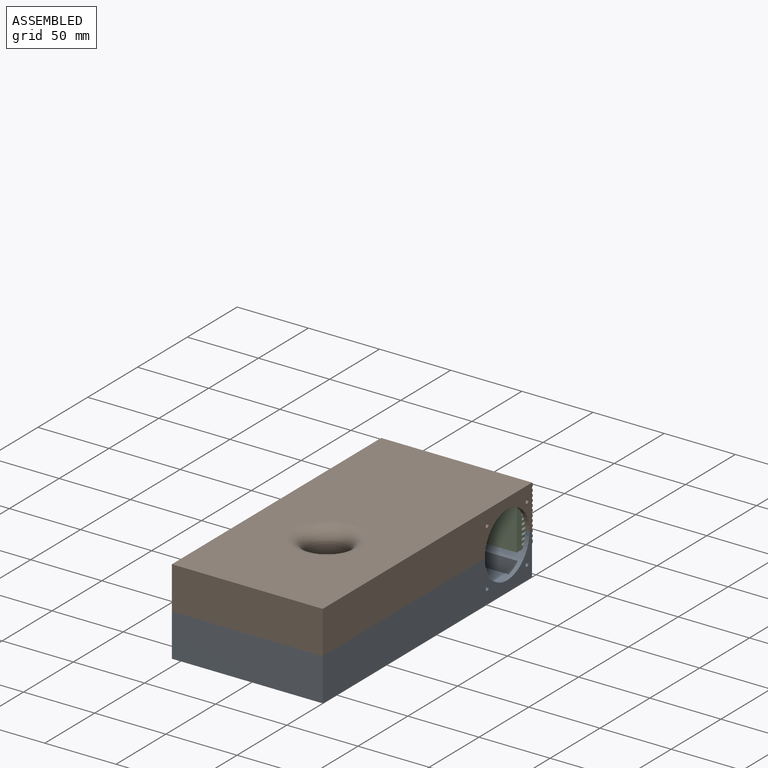
[diagram: assembled view]
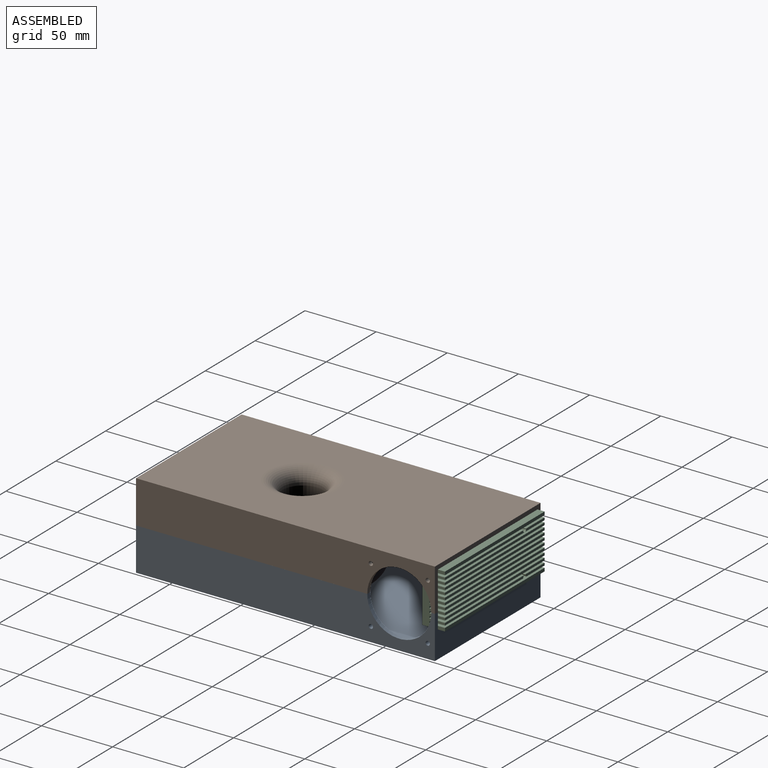
[diagram: assembled view, second angle]
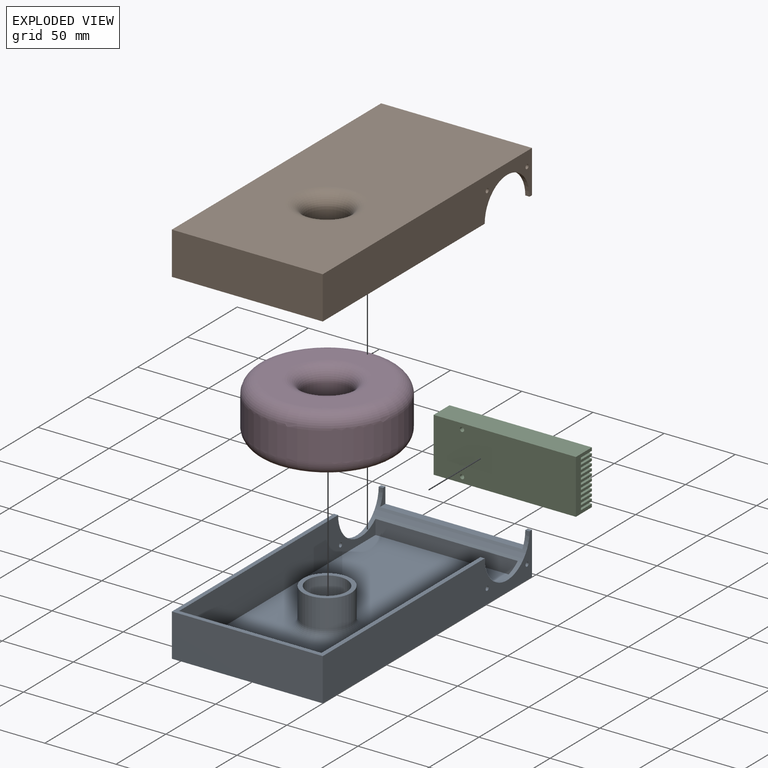
[diagram: exploded view]
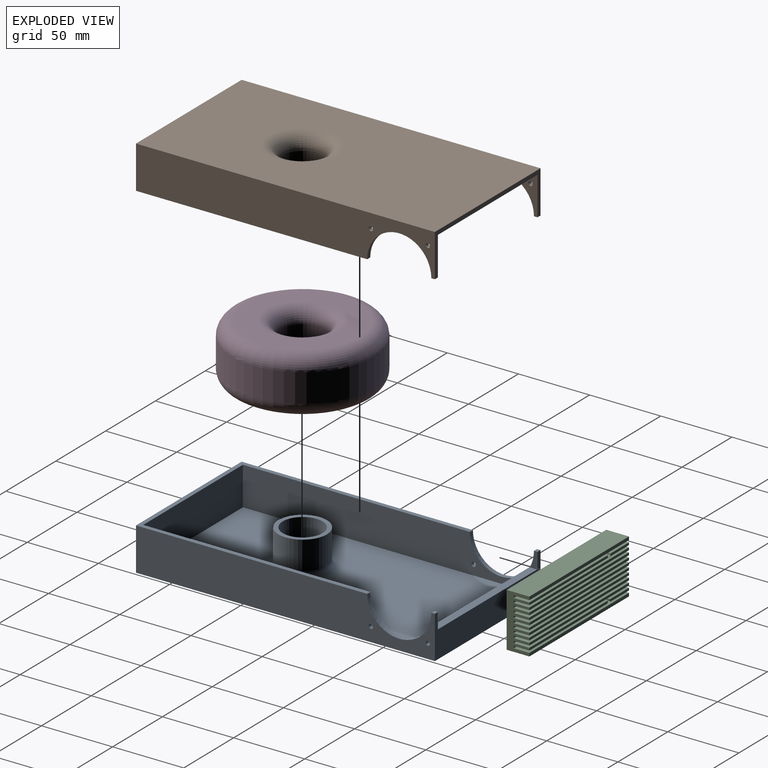
[diagram: exploded view, second angle]
ASSEMBLY  parts=4 mates=3
PART A: 25 faces, bbox 106x210x30 mm
  f0: plane 3x2.5mm, normal (0,0,1), area 7.5mm2, adj f1,f5,f18,f23
  f1: plane 106x30mm, normal (0,1,0), area 2080mm2, adj f0,f5,f7,f8,f11,f22,f23,f24
  f2: plane 162.5x106mm, normal (0,0,1), area 1275mm2, adj f3,f5,f6,f7,f12,f13,f18
  f3: plane 197x27mm, normal (1,0,0), area 4603.8mm2, adj f2,f13,f14,f17,f18,f21
  f4: plane 34x34mm, normal (0,0,1), area 292.2mm2, adj f9,f15
  f5: plane 210x30mm, normal (1,0,0), area 5490.6mm2, adj f0,f1,f2,f6,f8,f18,f19,f20
  f6: plane 106x30mm, normal (0,-1,0), area 3180mm2, adj f2,f5,f7,f8
  f7: plane 210x30mm, normal (-1,0,0), area 5490.6mm2, adj f1,f2,f6,f8,f11,f18,f20,f21
  f8: plane 210x106mm, normal (0,0,-1), area 20450.4mm2, adj f1,f5,f6,f7,f10
  f9: cylinder r=14mm len=28mm, axis (0,0,1), area 1759.3mm2, adj f4,f10
  f10: torus R=24mm, axis (0,0,1), area 1740.4mm2, adj f8,f9
  f11: plane 3x2.5mm, normal (0,0,1), area 7.5mm2, adj f1,f7,f18,f24
  f12: plane 197x27mm, normal (-1,0,0), area 4603.8mm2, adj f2,f13,f14,f17,f18,f19
  f13: plane 100x27mm, normal (0,1,0), area 2700mm2, adj f2,f3,f12,f14
  f14: plane 197x100mm, normal (0,0,1), area 17890.4mm2, adj f3,f12,f13,f16,f17
  f15: cylinder r=17mm len=34mm, axis (0,0,1), area 2136.3mm2, adj f4,f16
  f16: torus R=24mm, axis (0,0,1), area 1350.2mm2, adj f14,f15
  f17: plane 100x10.23mm, normal (0,-1,0), area 1022.9mm2, adj f3,f12,f14,f18
  f18: cylinder r=22.5mm len=106mm, axis (-1,0,0), area 1167.2mm2, adj f0,f2,f3,f5,f7,f11,f12,f17
  f19: cylinder r=1.5mm len=3mm, axis (-1,0,0), area 28.3mm2, adj f5,f12
  f20: cylinder r=1.5mm len=106mm, axis (-1,0,0), area 999mm2, adj f5,f7
  f21: cylinder r=1.5mm len=3mm, axis (-1,0,0), area 28.3mm2, adj f3,f7
  f22: plane 100x5.37mm, normal (0,0,1), area 537.2mm2, adj f1,f18,f23,f24
  f23: plane 11x5.37mm, normal (-1,0,0), area 37.7mm2, adj f0,f1,f18,f22
  f24: plane 11x5.37mm, normal (1,0,0), area 37.7mm2, adj f1,f11,f18,f22
PART B: 23 faces, bbox 106x210x30 mm
  f0: plane 3x2.5mm, normal (0,0,-1), area 7.5mm2, adj f1,f2,f9,f15
  f1: plane 106x30mm, normal (0,1,0), area 480mm2, adj f0,f4,f7,f9,f10,f13,f15,f16
  f2: cylinder r=22.5mm len=45mm, axis (-1,0,0), area 212.1mm2, adj f0,f3,f9,f15
  f3: plane 162.5x106mm, normal (0,0,-1), area 1275mm2, adj f2,f6,f7,f9,f12,f13,f15,f18
  f4: plane 3x2.5mm, normal (0,0,-1), area 7.5mm2, adj f1,f7,f13,f18
  f5: plane 34x34mm, normal (0,0,-1), area 292.2mm2, adj f8,f14
  f6: plane 106x30mm, normal (0,-1,0), area 3180mm2, adj f3,f7,f9,f10
  f7: plane 210x30mm, normal (-1,0,0), area 5490.6mm2, adj f1,f3,f4,f6,f10,f18,f21,f22
  f8: cylinder r=14mm len=28mm, axis (0,0,1), area 1759.3mm2, adj f5,f11
  f9: plane 210x30mm, normal (1,0,0), area 5490.6mm2, adj f0,f1,f2,f3,f6,f10,f19,f20
  f10: plane 210x106mm, normal (0,0,1), area 20450.4mm2, adj f1,f6,f7,f9,f11
  f11: torus R=24mm, axis (0,0,1), area 1740.4mm2, adj f8,f10
  f12: plane 100x27mm, normal (0,1,0), area 2700mm2, adj f3,f13,f15,f16
  f13: plane 207x27mm, normal (1,0,0), area 4779.6mm2, adj f1,f3,f4,f12,f16,f18,f21,f22
  f14: cylinder r=17mm len=34mm, axis (0,0,1), area 2136.3mm2, adj f5,f17
  f15: plane 207x27mm, normal (-1,0,0), area 4779.6mm2, adj f0,f1,f2,f3,f12,f16,f19,f20
  f16: plane 207x100mm, normal (0,0,-1), area 18890.4mm2, adj f1,f12,f13,f15,f17
  f17: torus R=24mm, axis (0,0,1), area 1350.2mm2, adj f14,f16
  f18: cylinder r=22.5mm len=45mm, axis (-1,0,0), area 212.1mm2, adj f3,f4,f7,f13
  f19: cylinder r=1.5mm len=3mm, axis (-1,0,0), area 28.3mm2, adj f9,f15
  f20: cylinder r=1.5mm len=3mm, axis (-1,0,0), area 28.3mm2, adj f9,f15
  f21: cylinder r=1.5mm len=3mm, axis (-1,0,0), area 28.3mm2, adj f7,f13
  f22: cylinder r=1.5mm len=3mm, axis (-1,0,0), area 28.3mm2, adj f7,f13
PART C: 58 faces, bbox 100x38x16 mm
  f0: plane 19.62x1.7mm, normal (0,0,1), area 31.9mm2, adj f7,f51,f53,f56
  f1: plane 19.62x1.7mm, normal (0,0,1), area 31.9mm2, adj f7,f35,f39,f57
  f2: plane 79.62x11mm, normal (0,-1,0), area 875.8mm2, adj f12,f18,f37,f57
  f3: plane 78.52x11mm, normal (0,1,0), area 863.7mm2, adj f12,f18,f40,f57
  f4: plane 79.62x11mm, normal (0,1,0), area 875.8mm2, adj f8,f18,f52,f56
  f5: plane 78.52x11mm, normal (0,-1,0), area 863.7mm2, adj f8,f18,f55,f56
  f6: plane 100x2.25mm, normal (0,0,1), area 225mm2, adj f7,f18,f20,f54
  f7: plane 38x16mm, normal (-1,0,0), area 426.5mm2, adj f0,f1,f6,f9,f10,f11,f13,f14
  f8: plane 79.62x1.7mm, normal (0,0,1), area 133.9mm2, adj f4,f5,f18,f56
  f9: plane 100x1.7mm, normal (0,0,1), area 170mm2, adj f7,f18,f48,f50
  f10: plane 100x1.7mm, normal (0,0,1), area 170mm2, adj f7,f18,f45,f47
  f11: plane 100x1.7mm, normal (0,0,1), area 170mm2, adj f7,f18,f42,f44
  f12: plane 79.62x1.7mm, normal (0,0,1), area 133.9mm2, adj f2,f3,f18,f57
  f13: plane 100x1.7mm, normal (0,0,1), area 170mm2, adj f7,f18,f32,f36
  f14: plane 100x1.7mm, normal (0,0,1), area 170mm2, adj f7,f18,f29,f33
  f15: plane 100x1.7mm, normal (0,0,1), area 170mm2, adj f7,f18,f26,f30
  f16: plane 100x1.7mm, normal (0,0,1), area 170mm2, adj f7,f18,f23,f27
  f17: plane 100x1.7mm, normal (0,0,1), area 170mm2, adj f7,f18,f24,f41
  f18: plane 38x16mm, normal (1,0,0), area 426.5mm2, adj f2,f3,f4,f5,f6,f8,f9,f10
  f19: plane 100x16mm, normal (0,1,0), area 1600mm2, adj f7,f18,f21,f22
  f20: plane 100x16mm, normal (0,-1,0), area 1600mm2, adj f6,f7,f18,f22
  f21: plane 100x2.25mm, normal (0,0,1), area 225mm2, adj f7,f18,f19,f38
  f22: plane 100x38mm, normal (0,0,-1), area 3785.9mm2, adj f7,f18,f19,f20,f56,f57
  f23: plane 100x11mm, normal (0,-1,0), area 1100mm2, adj f7,f16,f18,f25
  f24: plane 100x11mm, normal (0,1,0), area 1100mm2, adj f7,f17,f18,f25
  f25: plane 100x1.5mm, normal (0,0,1), area 150mm2, adj f7,f18,f23,f24
  f26: plane 100x11mm, normal (0,-1,0), area 1100mm2, adj f7,f15,f18,f28
  f27: plane 100x11mm, normal (0,1,0), area 1100mm2, adj f7,f16,f18,f28
  f28: plane 100x1.5mm, normal (0,0,1), area 150mm2, adj f7,f18,f26,f27
  f29: plane 100x11mm, normal (0,-1,0), area 1100mm2, adj f7,f14,f18,f31
  f30: plane 100x11mm, normal (0,1,0), area 1100mm2, adj f7,f15,f18,f31
  f31: plane 100x1.5mm, normal (0,0,1), area 150mm2, adj f7,f18,f29,f30
  f32: plane 100x11mm, normal (0,-1,0), area 1100mm2, adj f7,f13,f18,f34
  f33: plane 100x11mm, normal (0,1,0), area 1100mm2, adj f7,f14,f18,f34
  f34: plane 100x1.5mm, normal (0,0,1), area 150mm2, adj f7,f18,f32,f33
  f35: plane 19.62x11mm, normal (0,-1,0), area 215.8mm2, adj f1,f7,f37,f57
  f36: plane 100x11mm, normal (0,1,0), area 1100mm2, adj f7,f13,f18,f37
  f37: plane 100x1.5mm, normal (0,0,1), area 150mm2, adj f2,f7,f18,f35,f36,f57
  f38: plane 100x11mm, normal (0,-1,0), area 1100mm2, adj f7,f18,f21,f40
  f39: plane 18.52x11mm, normal (0,1,0), area 203.7mm2, adj f1,f7,f40,f57
  f40: plane 100x1.5mm, normal (0,0,1), area 147.2mm2, adj f3,f7,f18,f38,f39,f57
  f41: plane 100x11mm, normal (0,-1,0), area 1100mm2, adj f7,f17,f18,f43
  f42: plane 100x11mm, normal (0,1,0), area 1100mm2, adj f7,f11,f18,f43
  f43: plane 100x1.5mm, normal (0,0,1), area 150mm2, adj f7,f18,f41,f42
  f44: plane 100x11mm, normal (0,-1,0), area 1100mm2, adj f7,f11,f18,f46
  f45: plane 100x11mm, normal (0,1,0), area 1100mm2, adj f7,f10,f18,f46
  f46: plane 100x1.5mm, normal (0,0,1), area 150mm2, adj f7,f18,f44,f45
  f47: plane 100x11mm, normal (0,-1,0), area 1100mm2, adj f7,f10,f18,f49
  f48: plane 100x11mm, normal (0,1,0), area 1100mm2, adj f7,f9,f18,f49
  f49: plane 100x1.5mm, normal (0,0,1), area 150mm2, adj f7,f18,f47,f48
  f50: plane 100x11mm, normal (0,-1,0), area 1100mm2, adj f7,f9,f18,f52
  f51: plane 19.62x11mm, normal (0,1,0), area 215.8mm2, adj f0,f7,f52,f56
  f52: plane 100x1.5mm, normal (0,0,1), area 150mm2, adj f4,f7,f18,f50,f51,f56
  f53: plane 18.52x11mm, normal (0,-1,0), area 203.7mm2, adj f0,f7,f55,f56
  f54: plane 100x11mm, normal (0,1,0), area 1100mm2, adj f6,f7,f18,f55
  f55: plane 100x1.5mm, normal (0,0,1), area 147.2mm2, adj f5,f7,f18,f53,f54,f56
  f56: cylinder r=1.5mm len=16mm, axis (0,0,-1), area 95.9mm2, adj f0,f4,f5,f8,f22,f51,f52,f53
  f57: cylinder r=1.5mm len=16mm, axis (0,0,-1), area 95.9mm2, adj f1,f2,f3,f12,f22,f35,f37,f39
PART D: 8 faces, bbox 108.2x108.2x40 mm
  f0: cylinder r=16mm len=32mm, axis (0,0,-1), area 2010.6mm2, adj f6,f7
  f1: cylinder r=50mm len=100mm, axis (0,0,-1), area 6283.2mm2, adj f4,f5
  f2: plane 80x80mm, normal (0,0,1), area 2902.8mm2, adj f5,f7
  f3: plane 80x80mm, normal (0,0,-1), area 2902.8mm2, adj f4,f6
  f4: torus R=40mm, axis (0,0,1), area 4576.2mm2, adj f1,f3
  f5: torus R=40mm, axis (0,0,1), area 4576.2mm2, adj f1,f2
  f6: torus R=26mm, axis (0,0,1), area 1937.8mm2, adj f0,f3
  f7: torus R=26mm, axis (0,0,1), area 1937.8mm2, adj f0,f2
PLACE A t=(-48.46,34.58,33.34)mm
PLACE B t=(-48.46,34.58,33.34)mm
PLACE C rot(axis=(-1,0,0),90deg) t=(-48.46,128.58,71.34)mm
PLACE D t=(-48.46,9.58,36.34)mm
MATE fastened C.f19 <-> A.f22  axis (0,0,-1) through (1.54,144.58,52.34)mm
MATE fastened A.f9 <-> D.f0  axis (0,0,1) through (-48.46,9.58,36.34)mm
MATE fastened B.f3 <-> A.f2  axis (0,0,-1) through (4.54,-70.42,63.34)mm
